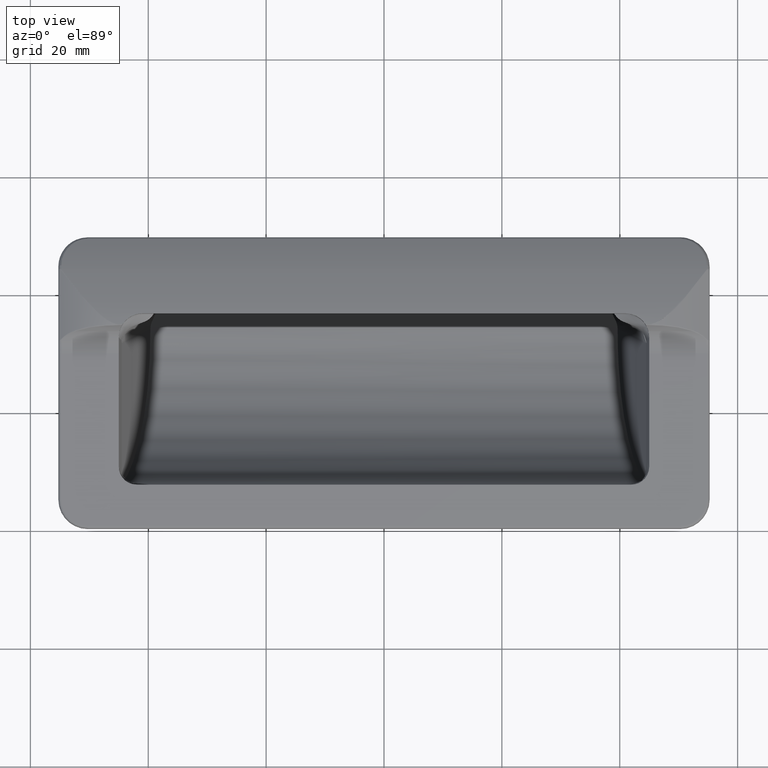
[diagram: clean part render]
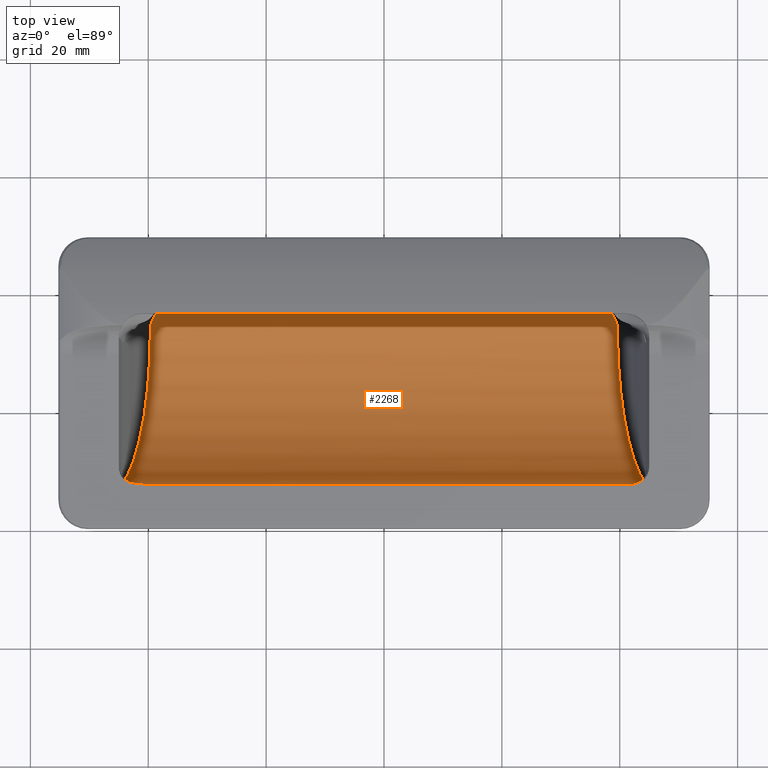
[diagram: same view with one face highlighted and labeled with its STEP entity id]
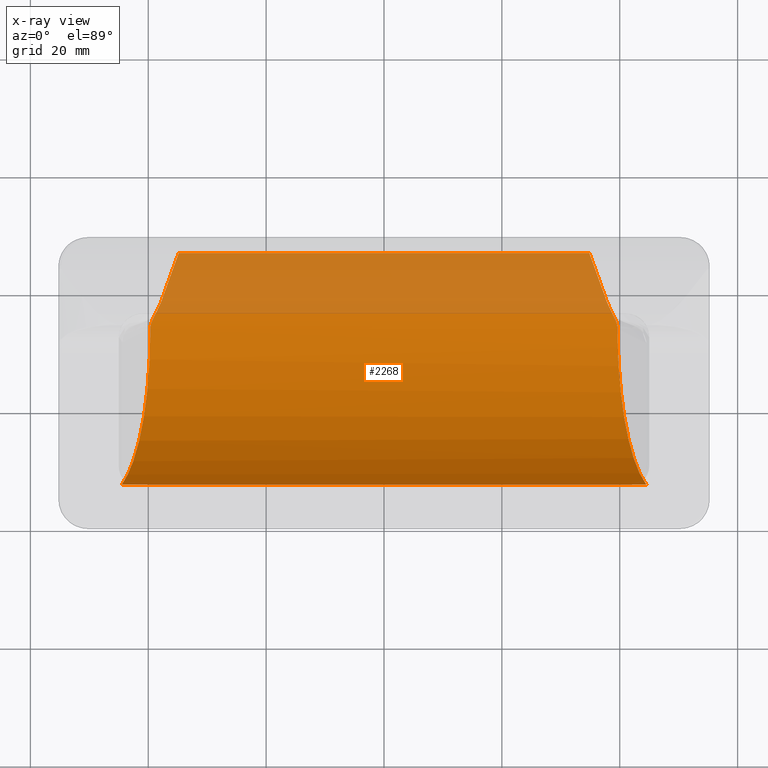
[diagram: x-ray of the same camera — body ghosted, the highlighted face saturated]
A machine part, top view. The second image highlights one B-rep face of the part: STEP entity #2268.
The next image is the same camera in x-ray: the body ghosted, the highlighted face saturated — about 24% of this face is hidden behind the body in this view.
In plain terms, the highlighted cylindrical surface (partial cylindrical patch) has radius 28.2469 mm, axis along (1, 0, 0).
Its self-contained STEP definition (entity closure, byte-faithful):
#19=ELLIPSE('',#2471,29.1734010398384,28.2469073569282);
#20=ELLIPSE('',#2474,29.1734010398384,28.2469073569282);
#157=LINE('',#4379,#255);
#160=LINE('',#4403,#258);
#178=LINE('',#5206,#276);
#255=VECTOR('',#2857,84.2723331647965);
#258=VECTOR('',#2860,4.7276668352035);
#276=VECTOR('',#2952,69.6549398106342);
#313=CYLINDRICAL_SURFACE('',#2472,28.2469073569282);
#449=FACE_OUTER_BOUND('',#596,.T.);
#596=EDGE_LOOP('',(#2033,#2034,#2035,#2036,#2037,#2038,#2039,#2040,#2041,
#2042,#2043,#2044,#2045,#2046,#2047));
#702=CIRCLE('',#2469,28.2469073569282);
#703=CIRCLE('',#2473,28.2469073569282);
#828=B_SPLINE_CURVE_WITH_KNOTS('',3,(#5250,#5251,#5252,#5253,#5254,#5255,
#5256),.UNSPECIFIED.,.F.,.F.,(4,3,4),(0.188256133761381,0.632983800696265,
1.10350793162608),.UNSPECIFIED.);
#830=B_SPLINE_CURVE_WITH_KNOTS('',3,(#5284,#5285,#5286,#5287,#5288,#5289),
 .UNSPECIFIED.,.F.,.F.,(4,2,4),(0.118944235785292,0.395411054204682,0.454678020660618),
 .UNSPECIFIED.);
#833=B_SPLINE_CURVE_WITH_KNOTS('',3,(#5321,#5322,#5323,#5324,#5325,#5326,
#5327),.UNSPECIFIED.,.F.,.F.,(4,3,4),(0.,0.0182120984783737,0.0363593970060742),
 .UNSPECIFIED.);
#835=B_SPLINE_CURVE_WITH_KNOTS('',3,(#5338,#5339,#5340,#5341,#5342,#5343,
#5344,#5345,#5346,#5347),.UNSPECIFIED.,.F.,.F.,(4,3,3,4),(0.,0.0667590974156056,
0.0761835117331813,0.132097791699367),.UNSPECIFIED.);
#836=B_SPLINE_CURVE_WITH_KNOTS('',3,(#5349,#5350,#5351,#5352,#5353,#5354,
#5355),.UNSPECIFIED.,.F.,.F.,(4,3,4),(0.,0.0181472683607366,0.0363593475788649),
 .UNSPECIFIED.);
#837=B_SPLINE_CURVE_WITH_KNOTS('',3,(#5356,#5357,#5358,#5359,#5360,#5361,
#5362),.UNSPECIFIED.,.F.,.F.,(4,3,4),(0.214243221593615,0.622463724994382,
1.12971547835517),.UNSPECIFIED.);
#838=B_SPLINE_CURVE_WITH_KNOTS('',3,(#5364,#5365,#5366,#5367,#5368,#5369),
 .UNSPECIFIED.,.F.,.F.,(4,2,4),(0.332351926391062,0.385609423214202,0.668489087236062),
 .UNSPECIFIED.);
#839=B_SPLINE_CURVE_WITH_KNOTS('',3,(#5370,#5371,#5372,#5373,#5374,#5375,
#5376,#5377,#5378,#5379),.UNSPECIFIED.,.F.,.F.,(4,3,3,4),(0.,0.0653438746448873,
0.0748000155305814,0.132118298636327),.UNSPECIFIED.);
#990=VERTEX_POINT('',#4377);
#991=VERTEX_POINT('',#4378);
#992=VERTEX_POINT('',#4402);
#1035=VERTEX_POINT('',#5187);
#1038=VERTEX_POINT('',#5198);
#1040=VERTEX_POINT('',#5225);
#1041=VERTEX_POINT('',#5244);
#1042=VERTEX_POINT('',#5277);
#1043=VERTEX_POINT('',#5283);
#1044=VERTEX_POINT('',#5315);
#1045=VERTEX_POINT('',#5329);
#1046=VERTEX_POINT('',#5337);
#1047=VERTEX_POINT('',#5348);
#1048=VERTEX_POINT('',#5363);
#1049=VERTEX_POINT('',#5380);
#1281=EDGE_CURVE('',#990,#991,#157,.T.);
#1284=EDGE_CURVE('',#991,#992,#160,.T.);
#1368=EDGE_CURVE('',#1035,#1038,#178,.T.);
#1372=EDGE_CURVE('',#1040,#992,#702,.F.);
#1375=EDGE_CURVE('',#1038,#1041,#828,.T.);
#1377=EDGE_CURVE('',#1043,#1042,#830,.T.);
#1380=EDGE_CURVE('',#1044,#1041,#833,.F.);
#1382=EDGE_CURVE('',#1045,#1040,#19,.T.);
#1383=EDGE_CURVE('',#1046,#1043,#835,.T.);
#1384=EDGE_CURVE('',#1047,#1042,#836,.F.);
#1385=EDGE_CURVE('',#1047,#1035,#837,.T.);
#1386=EDGE_CURVE('',#1044,#1048,#838,.T.);
#1387=EDGE_CURVE('',#1048,#1045,#839,.T.);
#1388=EDGE_CURVE('',#990,#1049,#703,.F.);
#1389=EDGE_CURVE('',#1049,#1046,#20,.T.);
#2033=ORIENTED_EDGE('',*,*,#1383,.T.);
#2034=ORIENTED_EDGE('',*,*,#1377,.T.);
#2035=ORIENTED_EDGE('',*,*,#1384,.F.);
#2036=ORIENTED_EDGE('',*,*,#1385,.T.);
#2037=ORIENTED_EDGE('',*,*,#1368,.T.);
#2038=ORIENTED_EDGE('',*,*,#1375,.T.);
#2039=ORIENTED_EDGE('',*,*,#1380,.F.);
#2040=ORIENTED_EDGE('',*,*,#1386,.T.);
#2041=ORIENTED_EDGE('',*,*,#1387,.T.);
#2042=ORIENTED_EDGE('',*,*,#1382,.T.);
#2043=ORIENTED_EDGE('',*,*,#1372,.T.);
#2044=ORIENTED_EDGE('',*,*,#1284,.F.);
#2045=ORIENTED_EDGE('',*,*,#1281,.F.);
#2046=ORIENTED_EDGE('',*,*,#1388,.T.);
#2047=ORIENTED_EDGE('',*,*,#1389,.T.);
#2268=ADVANCED_FACE('',(#449),#313,.F.);
#2469=AXIS2_PLACEMENT_3D('',#5226,#2957,#2958);
#2471=AXIS2_PLACEMENT_3D('',#5335,#2962,#2963);
#2472=AXIS2_PLACEMENT_3D('',#5336,#2964,#2965);
#2473=AXIS2_PLACEMENT_3D('',#5381,#2966,#2967);
#2474=AXIS2_PLACEMENT_3D('',#5382,#2968,#2969);
#2857=DIRECTION('',(-1.,0.,0.));
#2860=DIRECTION('',(-1.,0.,0.));
#2952=DIRECTION('',(-1.,0.,0.));
#2957=DIRECTION('center_axis',(1.,0.,0.));
#2958=DIRECTION('ref_axis',(0.,0.952356524248811,0.304986968116219));
#2962=DIRECTION('center_axis',(-0.968241835031677,-2.13511304091591E-16,
-0.250015497308649));
#2963=DIRECTION('ref_axis',(-0.25001549730865,9.51400063973571E-16,0.968241835031677));
#2964=DIRECTION('center_axis',(1.,0.,0.));
#2965=DIRECTION('ref_axis',(0.,0.952356524248811,0.304986968116219));
#2966=DIRECTION('center_axis',(-1.,0.,0.));
#2967=DIRECTION('ref_axis',(0.,0.952356524248811,0.304986968116219));
#2968=DIRECTION('center_axis',(0.968241835031677,-2.00520963749256E-16,
-0.250015497308649));
#2969=DIRECTION('ref_axis',(0.250015497308649,3.42504023030486E-16,0.968241835031677));
#4377=CARTESIAN_POINT('',(44.5,7.53114302698084,3.70074341541719E-16));
#4378=CARTESIAN_POINT('',(-39.7723331647965,7.53114302698084,-1.4210478234247E-15));
#4379=CARTESIAN_POINT('',(0.,7.53114302698085,0.));
#4402=CARTESIAN_POINT('',(-44.5,7.53114302698084,3.70074341541719E-16));
#4403=CARTESIAN_POINT('',(0.,7.53114302698085,0.));
#5187=CARTESIAN_POINT('',(34.8274699053171,47.0999999999997,-15.7755244618839));
#5198=CARTESIAN_POINT('',(-34.8274699053171,47.0999999999997,-15.7755244618839));
#5206=CARTESIAN_POINT('',(0.,47.0999999999997,-15.7755244618839));
#5225=CARTESIAN_POINT('',(-44.5,7.56018478482306,-0.0824132415830379));
#5226=CARTESIAN_POINT('Origin',(-44.5,34.1867821694191,9.34690735692816));
#5244=CARTESIAN_POINT('',(-37.7893516655732,38.9229966332397,-18.5001041125918));
#5250=CARTESIAN_POINT('Ctrl Pts',(-34.8274716976418,47.099988594149,-15.7755246902181));
#5251=CARTESIAN_POINT('Ctrl Pts',(-35.2876367972853,45.84750390324,-16.4191717872074));
#5252=CARTESIAN_POINT('Ctrl Pts',(-35.7591012878456,44.5516320244003,-16.9670610070719));
#5253=CARTESIAN_POINT('Ctrl Pts',(-36.23985123221,43.2227168312294,-17.4157462400769));
#5254=CARTESIAN_POINT('Ctrl Pts',(-36.7484390742671,41.8168506043175,-17.8904126588502));
#5255=CARTESIAN_POINT('Ctrl Pts',(-37.2656878354839,40.3788360909751,-18.2524645188865));
#5256=CARTESIAN_POINT('Ctrl Pts',(-37.7893516655732,38.9229966332398,-18.5001041125918));
#5277=CARTESIAN_POINT('',(37.9314774096458,38.5930222826521,-18.5542184858657));
#5283=CARTESIAN_POINT('',(39.3627712983634,35.5840604522602,-18.8654195345422));
#5284=CARTESIAN_POINT('Ctrl Pts',(39.3627712983635,35.5840604522602,-18.8654195345422));
#5285=CARTESIAN_POINT('Ctrl Pts',(38.9817511059842,36.4186233404116,-18.8240859499795));
#5286=CARTESIAN_POINT('Ctrl Pts',(38.5972030442747,37.2473973022434,-18.7459153896728));
#5287=CARTESIAN_POINT('Ctrl Pts',(38.1067152290446,38.2438663477283,-18.6076876438908));
#5288=CARTESIAN_POINT('Ctrl Pts',(38.0194895367436,38.418887621304,-18.5817184202504));
#5289=CARTESIAN_POINT('Ctrl Pts',(37.9314774096458,38.5930222826521,-18.5542184858657));
#5315=CARTESIAN_POINT('',(-37.9314774096458,38.593022282652,-18.5542184858657));
#5321=CARTESIAN_POINT('Ctrl Pts',(-37.789351666025,38.9229966316039,-18.5001041127697));
#5322=CARTESIAN_POINT('Ctrl Pts',(-37.8096408924454,38.8665905156338,-18.5096976536756));
#5323=CARTESIAN_POINT('Ctrl Pts',(-37.8316778815661,38.8107833338098,-18.5190129937156));
#5324=CARTESIAN_POINT('Ctrl Pts',(-37.8554305933573,38.7556518027782,-18.528049375175));
#5325=CARTESIAN_POINT('Ctrl Pts',(-37.8790987912989,38.7007164336824,-18.537053604542));
#5326=CARTESIAN_POINT('Ctrl Pts',(-37.9044580244572,38.6464809552781,-18.5457761115668));
#5327=CARTESIAN_POINT('Ctrl Pts',(-37.9314774096458,38.593022282652,-18.5542184858657));
#5329=CARTESIAN_POINT('',(-39.6410623693026,34.3047843235532,-18.8997535204659));
#5335=CARTESIAN_POINT('Origin',(-46.9348010935123,34.1867821694191,9.34690735692816));
#5336=CARTESIAN_POINT('Origin',(0.,34.1867821694191,9.34690735692816));
#5337=CARTESIAN_POINT('',(39.6410623693026,34.3047843235532,-18.8997535204659));
#5338=CARTESIAN_POINT('Ctrl Pts',(39.6410622837709,34.3047841135126,-18.8997538517067));
#5339=CARTESIAN_POINT('Ctrl Pts',(39.6413062206105,34.5273102466638,-18.8988267136811));
#5340=CARTESIAN_POINT('Ctrl Pts',(39.61709510568,34.7491961108059,-18.8952286080526));
#5341=CARTESIAN_POINT('Ctrl Pts',(39.5692618706654,34.9664580194379,-18.8892364534939));
#5342=CARTESIAN_POINT('Ctrl Pts',(39.5625092295666,34.9971289889633,-18.8883905381146));
#5343=CARTESIAN_POINT('Ctrl Pts',(39.5552893837285,35.0276829498007,-18.8874972327556));
#5344=CARTESIAN_POINT('Ctrl Pts',(39.5476048622951,35.0581091894387,-18.8865580549674));
#5345=CARTESIAN_POINT('Ctrl Pts',(39.502013224624,35.2386255827242,-18.880985989901));
#5346=CARTESIAN_POINT('Ctrl Pts',(39.4401114862169,35.4146593238262,-18.8738095024722));
#5347=CARTESIAN_POINT('Ctrl Pts',(39.3627712983635,35.5840604522602,-18.8654195345422));
#5348=CARTESIAN_POINT('',(37.7893516655732,38.9229966332397,-18.5001041125918));
#5349=CARTESIAN_POINT('Ctrl Pts',(37.9314774096458,38.5930222826521,-18.5542184858657));
#5350=CARTESIAN_POINT('Ctrl Pts',(37.9044580326423,38.6464809390836,-18.5457761141243));
#5351=CARTESIAN_POINT('Ctrl Pts',(37.8790988066614,38.7007164008273,-18.5370536098261));
#5352=CARTESIAN_POINT('Ctrl Pts',(37.8554306148613,38.7556517528661,-18.5280493833559));
#5353=CARTESIAN_POINT('Ctrl Pts',(37.8316778948682,38.8107833001226,-18.5190129993385));
#5354=CARTESIAN_POINT('Ctrl Pts',(37.8096408985698,38.8665904986072,-18.5096976565715));
#5355=CARTESIAN_POINT('Ctrl Pts',(37.789351666025,38.9229966316039,-18.5001041127697));
#5356=CARTESIAN_POINT('Ctrl Pts',(37.7893516655732,38.9229966332398,-18.5001041125918));
#5357=CARTESIAN_POINT('Ctrl Pts',(37.3350535097662,40.1859918768689,-18.2852758072887));
#5358=CARTESIAN_POINT('Ctrl Pts',(36.8855509109254,41.4356925883263,-17.9843162006553));
#5359=CARTESIAN_POINT('Ctrl Pts',(36.4422717251646,42.6627686050899,-17.5983224370747));
#5360=CARTESIAN_POINT('Ctrl Pts',(35.8914044382548,44.1876677158531,-17.1186442926051));
#5361=CARTESIAN_POINT('Ctrl Pts',(35.3521696838925,45.6718577242351,-16.5093823333176));
#5362=CARTESIAN_POINT('Ctrl Pts',(34.827471697636,47.0999885941646,-15.775524690218));
#5363=CARTESIAN_POINT('',(-39.3627712983635,35.5840604522602,-18.8654195345422));
#5364=CARTESIAN_POINT('Ctrl Pts',(-37.9314774096458,38.593022282652,-18.5542184858657));
#5365=CARTESIAN_POINT('Ctrl Pts',(-38.0104991958572,38.4366752832692,-18.5789093325414));
#5366=CARTESIAN_POINT('Ctrl Pts',(-38.0888893100295,38.2796091083655,-18.6023669012549));
#5367=CARTESIAN_POINT('Ctrl Pts',(-38.5803330360072,37.283744656354,-18.7424656745285));
#5368=CARTESIAN_POINT('Ctrl Pts',(-38.973378543499,36.4369620795878,-18.8231776831044));
#5369=CARTESIAN_POINT('Ctrl Pts',(-39.3627712983635,35.5840604522602,-18.8654195345422));
#5370=CARTESIAN_POINT('Ctrl Pts',(-39.3627712983635,35.5840604522602,-18.8654195345422));
#5371=CARTESIAN_POINT('Ctrl Pts',(-39.4531403977406,35.3861216078517,-18.8752228963736));
#5372=CARTESIAN_POINT('Ctrl Pts',(-39.5223786566175,35.1791149555886,-18.883357821095));
#5373=CARTESIAN_POINT('Ctrl Pts',(-39.5692513816153,34.9665054775803,-18.8892352858094));
#5374=CARTESIAN_POINT('Ctrl Pts',(-39.5760344977633,34.9357380156169,-18.8900858343067));
#5375=CARTESIAN_POINT('Ctrl Pts',(-39.58234194861,34.9048778014655,-18.8908878685294));
#5376=CARTESIAN_POINT('Ctrl Pts',(-39.5881701851473,34.8739356338783,-18.8916403829496));
#5377=CARTESIAN_POINT('Ctrl Pts',(-39.6234979701165,34.6863800609334,-18.8962017399661));
#5378=CARTESIAN_POINT('Ctrl Pts',(-39.6412685649046,34.4958111264757,-18.8989572564233));
#5379=CARTESIAN_POINT('Ctrl Pts',(-39.6410622825684,34.3047841142051,-18.8997538563636));
#5380=CARTESIAN_POINT('',(44.5,7.56018478482305,-0.0824132415830146));
#5381=CARTESIAN_POINT('Origin',(44.5,34.1867821694191,9.34690735692816));
#5382=CARTESIAN_POINT('Origin',(46.9348010935123,34.1867821694191,9.34690735692816));